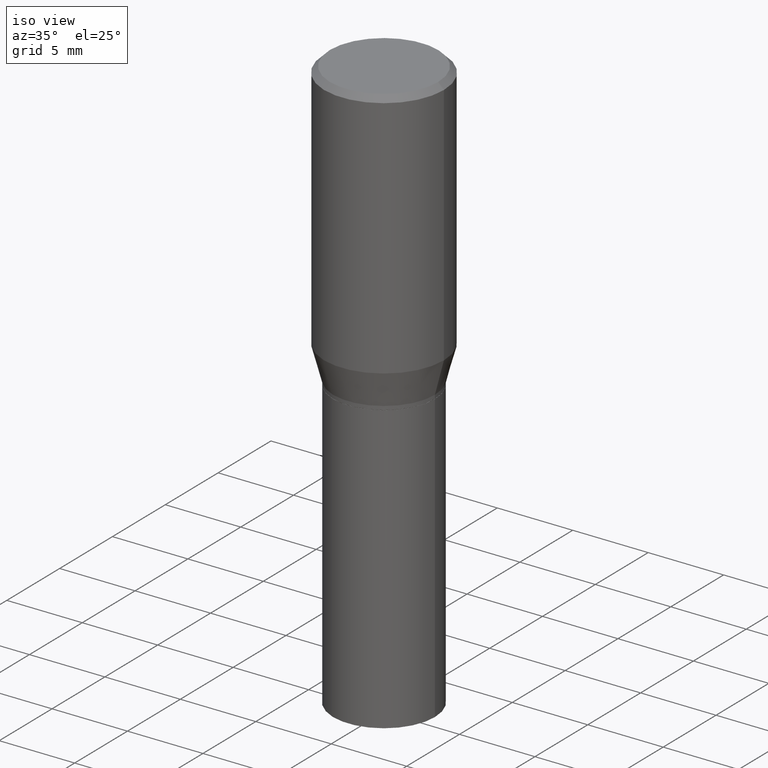
[diagram: clean part render]
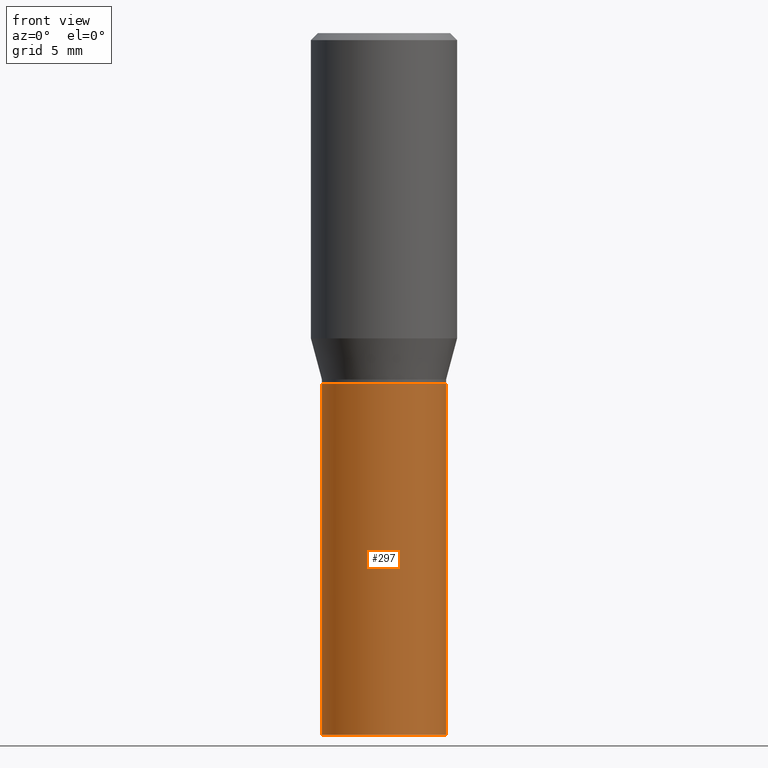
[diagram: tour spotlight — one face highlighted and labeled with its STEP entity id]
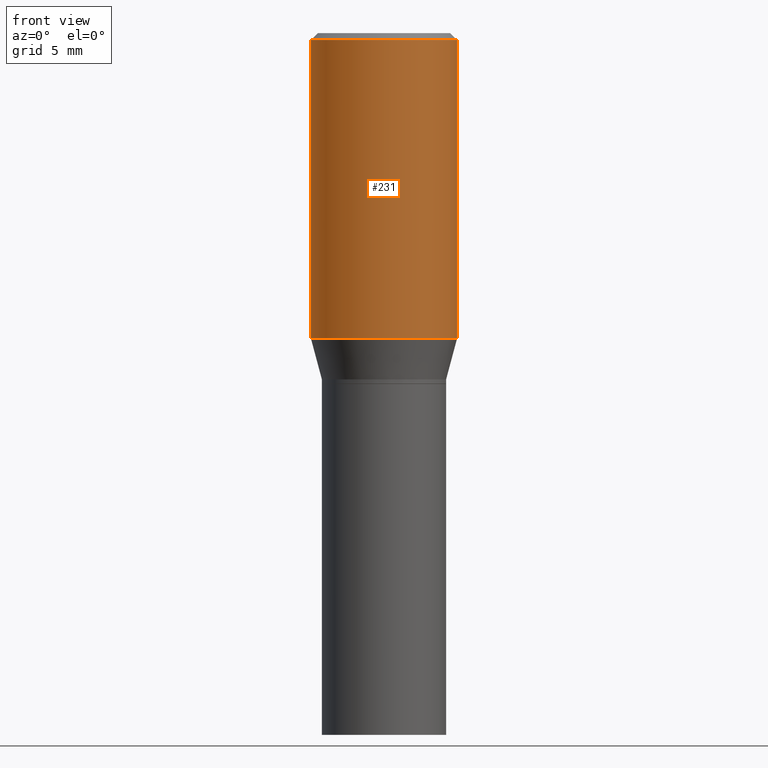
[diagram: tour spotlight — one face highlighted and labeled with its STEP entity id]
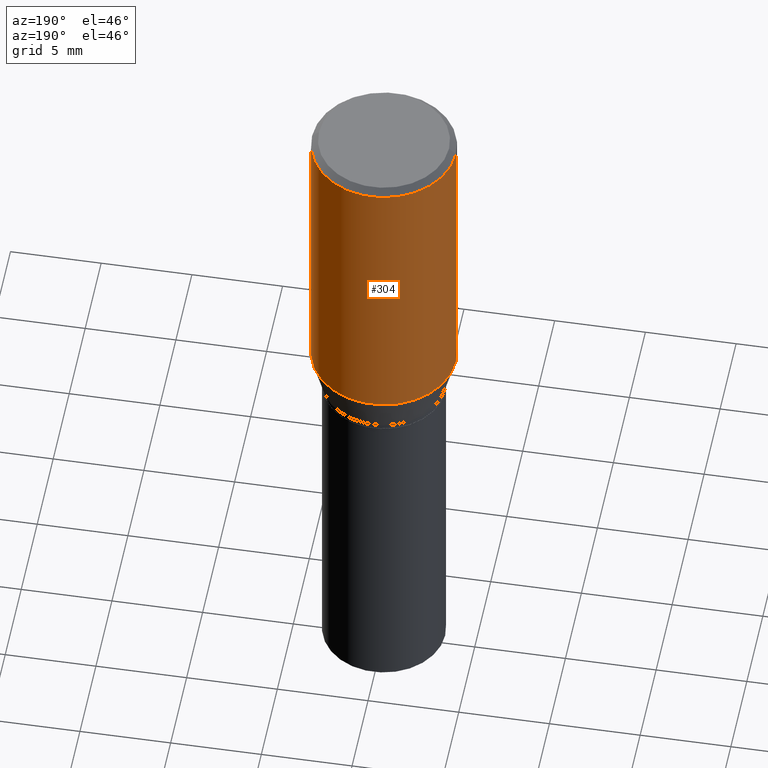
[diagram: tour spotlight — one face highlighted and labeled with its STEP entity id]
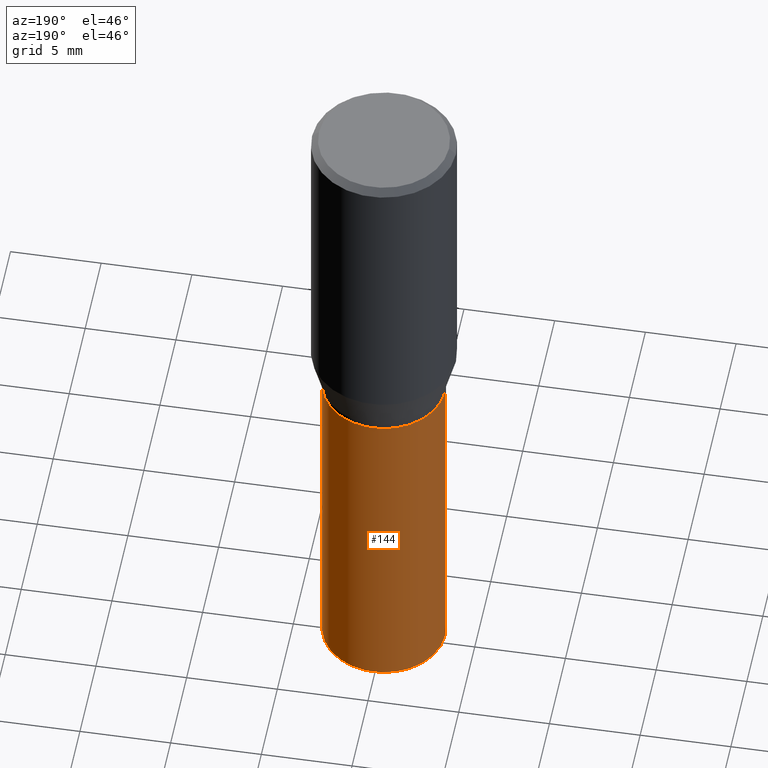
[diagram: tour spotlight — one face highlighted and labeled with its STEP entity id]
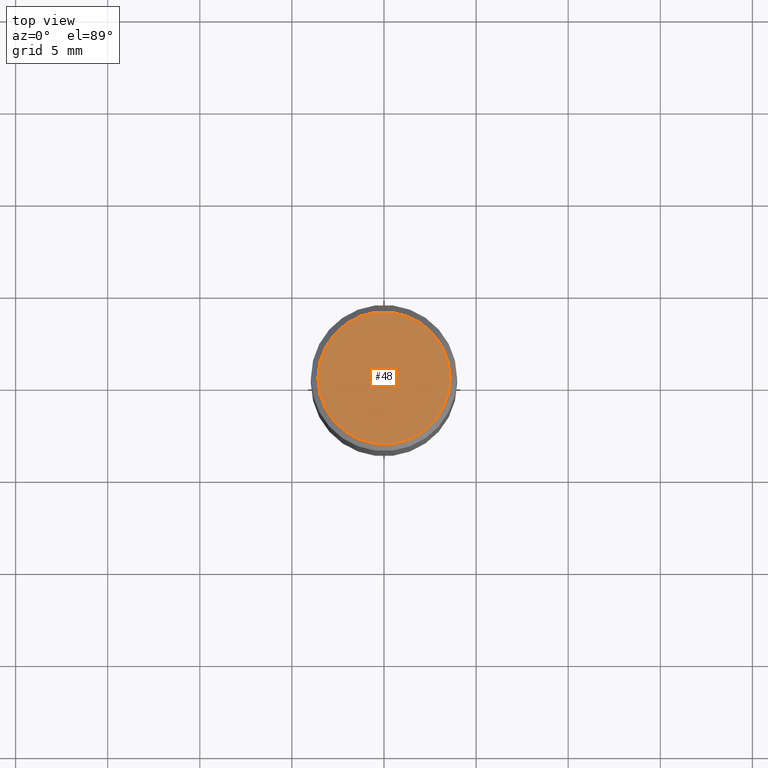
[diagram: tour spotlight — one face highlighted and labeled with its STEP entity id]
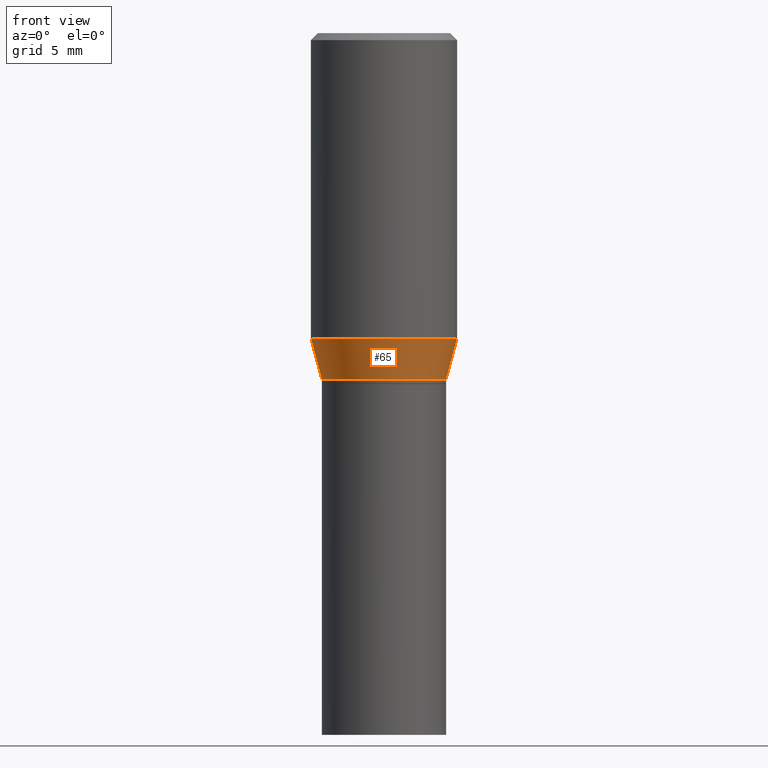
[diagram: tour spotlight — one face highlighted and labeled with its STEP entity id]
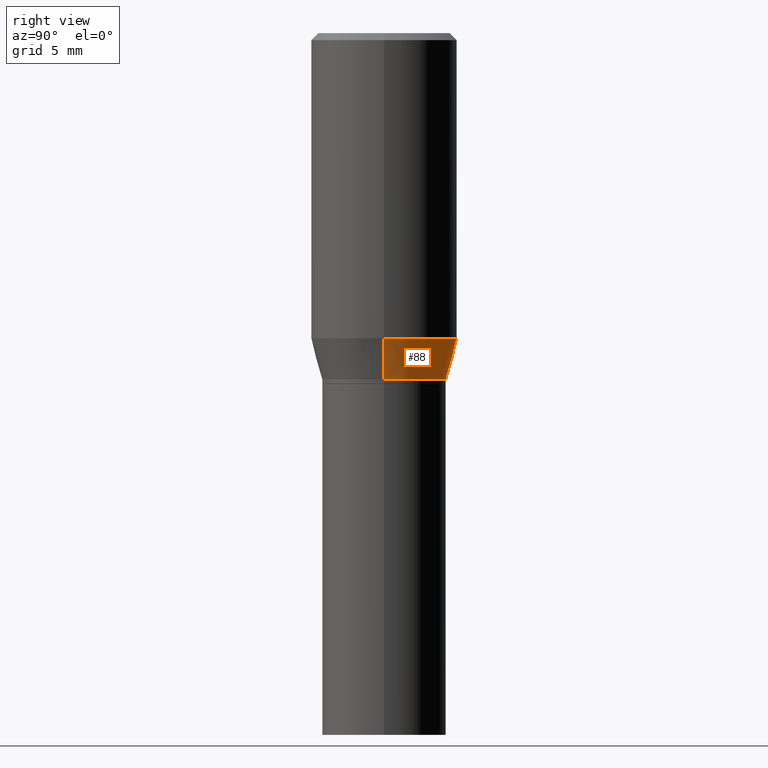
[diagram: tour spotlight — one face highlighted and labeled with its STEP entity id]
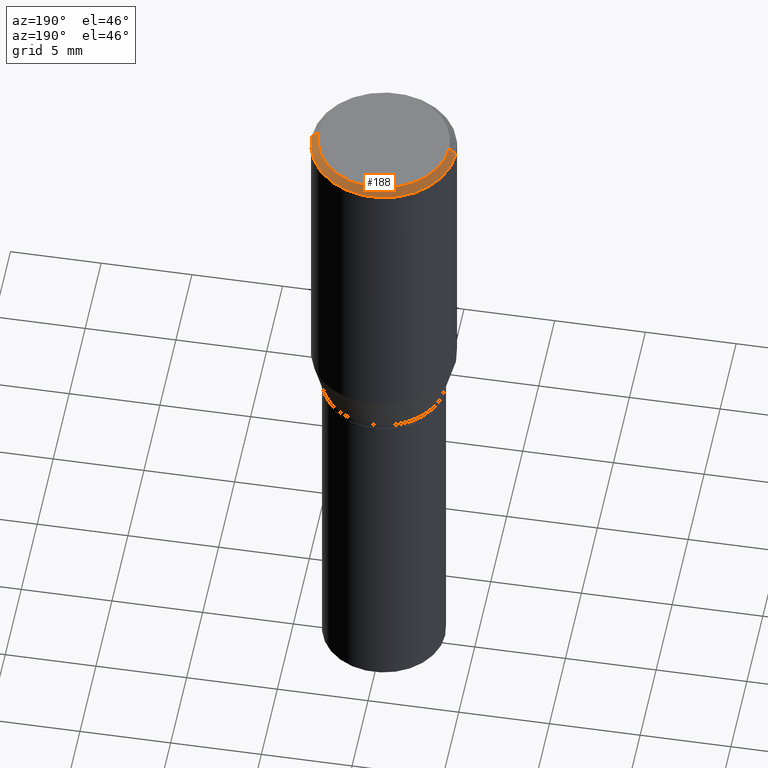
[diagram: tour spotlight — one face highlighted and labeled with its STEP entity id]
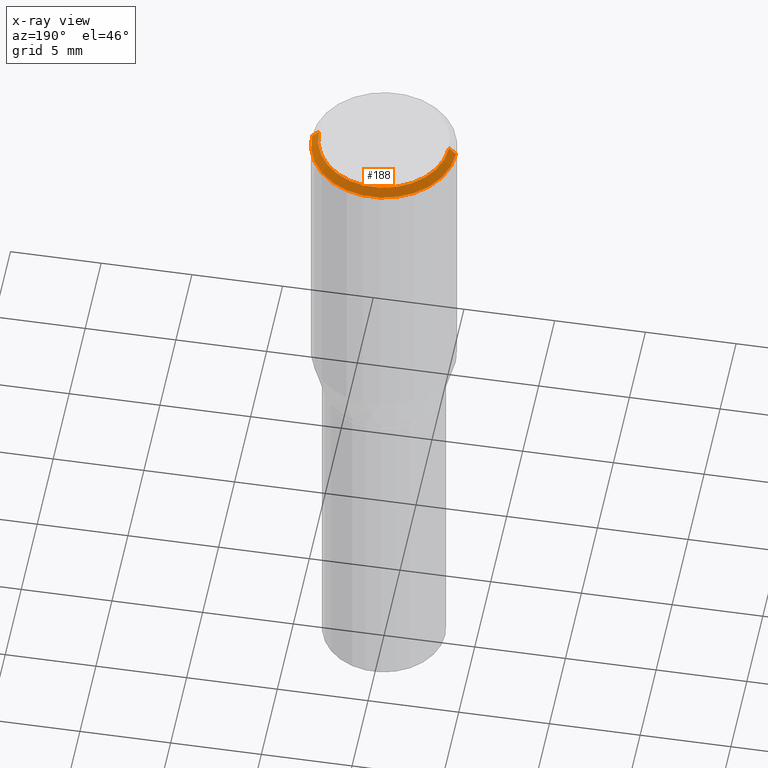
[diagram: x-ray of the same camera — body ghosted, this tour face saturated]
A machine part: a face-by-face anatomy tour. The part has 16 B-rep faces; the first image is the clean iso view, then the 8 largest visible faces are spotlighted one at a time (largest first), each with its STEP entity span.

Face 1 — front view, entity #297. In plain terms, the highlighted cylindrical surface (partial cylindrical patch) has radius 3.3731 mm, axis along (-0, 0, 1).
Definition (entity closure, byte-faithful):
#11 = DIRECTION ( 'NONE',  ( 1.000000000000000000, -6.982962677686268288E-15, 0.000000000000000000 ) ) ;
#21 = DIRECTION ( 'NONE',  ( 1.000000000000000000, -6.982962677686263555E-15, 0.000000000000000000 ) ) ;
#23 = CARTESIAN_POINT ( 'NONE',  ( 0.1328000000000000014, -3.545948447729095705E-15, -0.7500000000000001110 ) ) ;
#59 = DIRECTION ( 'NONE',  ( -2.445468806185136597E-29, 3.491481338843145583E-15, 1.000000000000000000 ) ) ;
#60 = ORIENTED_EDGE ( 'NONE', *, *, #67, .F. ) ;
#64 = LINE ( 'NONE', #433, #202 ) ;
#67 = EDGE_CURVE ( 'NONE', #178, #221, #130, .T. ) ;
#75 = CIRCLE ( 'NONE', #98, 0.1328000000000000014 ) ;
#92 = CIRCLE ( 'NONE', #455, 0.1328000000000000014 ) ;
#96 = CARTESIAN_POINT ( 'NONE',  ( 3.668203209277704895E-29, -5.237222008264718177E-15, -1.500000000000000222 ) ) ;
#98 = AXIS2_PLACEMENT_3D ( 'NONE', #180, #217, #11 ) ;
#116 = EDGE_CURVE ( 'NONE', #178, #373, #92, .T. ) ;
#121 = VERTEX_POINT ( 'NONE', #23 ) ;
#130 = LINE ( 'NONE', #452, #248 ) ;
#136 = DIRECTION ( 'NONE',  ( 1.000000000000000000, -6.982962677686266711E-15, 4.876176775795935232E-29 ) ) ;
#169 = CARTESIAN_POINT ( 'NONE',  ( -0.1328000000000000014, -2.984315753109125576E-15, -0.7500000000000001110 ) ) ;
#178 = VERTEX_POINT ( 'NONE', #197 ) ;
#180 = CARTESIAN_POINT ( 'NONE',  ( 1.834101604638852448E-29, -2.618611004132359088E-15, -0.7500000000000001110 ) ) ;
#197 = CARTESIAN_POINT ( 'NONE',  ( -0.1328000000000000014, -2.984315753109125576E-15, -1.500000000000000222 ) ) ;
#202 = VECTOR ( 'NONE', #427, 39.37007874015748143 ) ;
#217 = DIRECTION ( 'NONE',  ( -2.445468806185136597E-29, 3.491481338843145583E-15, 1.000000000000000000 ) ) ;
#221 = VERTEX_POINT ( 'NONE', #169 ) ;
#236 = CYLINDRICAL_SURFACE ( 'NONE', #343, 0.1328000000000000014 ) ;
#248 = VECTOR ( 'NONE', #421, 39.37007874015748143 ) ;
#274 = EDGE_CURVE ( 'NONE', #373, #121, #64, .T. ) ;
#291 = ORIENTED_EDGE ( 'NONE', *, *, #116, .T. ) ;
#297 = ADVANCED_FACE ( 'NONE', ( #391 ), #236, .T. ) ;
#325 = ORIENTED_EDGE ( 'NONE', *, *, #429, .F. ) ;
#343 = AXIS2_PLACEMENT_3D ( 'NONE', #350, #59, #136 ) ;
#350 = CARTESIAN_POINT ( 'NONE',  ( 0.000000000000000000, 0.000000000000000000, 0.000000000000000000 ) ) ;
#358 = ORIENTED_EDGE ( 'NONE', *, *, #274, .T. ) ;
#373 = VERTEX_POINT ( 'NONE', #435 ) ;
#391 = FACE_OUTER_BOUND ( 'NONE', #441, .T. ) ;
#421 = DIRECTION ( 'NONE',  ( -2.445468806185136877E-29, 3.491481338843145188E-15, 1.000000000000000000 ) ) ;
#427 = DIRECTION ( 'NONE',  ( -2.445468806185136877E-29, 3.491481338843145188E-15, 1.000000000000000000 ) ) ;
#429 = EDGE_CURVE ( 'NONE', #221, #121, #75, .T. ) ;
#433 = CARTESIAN_POINT ( 'NONE',  ( 0.1328000000000000014, -9.273374435967362223E-16, 6.475562758257002307E-30 ) ) ;
#435 = CARTESIAN_POINT ( 'NONE',  ( 0.1328000000000000014, -6.164559451861454793E-15, -1.500000000000000222 ) ) ;
#441 = EDGE_LOOP ( 'NONE', ( #60, #291, #358, #325 ) ) ;
#452 = CARTESIAN_POINT ( 'NONE',  ( -0.1328000000000000014, 9.436007530894130566E-16, -6.532345799858513932E-30 ) ) ;
#455 = AXIS2_PLACEMENT_3D ( 'NONE', #96, #460, #21 ) ;
#460 = DIRECTION ( 'NONE',  ( -2.445468806185136597E-29, 3.491481338843145583E-15, 1.000000000000000000 ) ) ;

Face 2 — front view, entity #231. In plain terms, the highlighted cylindrical surface (partial cylindrical patch) has radius 3.9688 mm, axis along (-0, 0, 1).
Definition (entity closure, byte-faithful):
#2 = EDGE_CURVE ( 'NONE', #108, #404, #413, .T. ) ;
#3 = CARTESIAN_POINT ( 'NONE',  ( -0.1562500000000000000, 1.110223024625156540E-15, -7.685836078523291160E-30 ) ) ;
#24 = VECTOR ( 'NONE', #281, 39.37007874015748143 ) ;
#27 = FACE_OUTER_BOUND ( 'NONE', #368, .T. ) ;
#44 = CARTESIAN_POINT ( 'NONE',  ( 1.595627822192971094E-29, -2.278133644900773069E-15, -0.6524834085625104141 ) ) ;
#72 = ORIENTED_EDGE ( 'NONE', *, *, #2, .T. ) ;
#104 = AXIS2_PLACEMENT_3D ( 'NONE', #44, #251, #369 ) ;
#105 = AXIS2_PLACEMENT_3D ( 'NONE', #106, #397, #428 ) ;
#106 = CARTESIAN_POINT ( 'NONE',  ( 0.000000000000000000, 0.000000000000000000, 0.000000000000000000 ) ) ;
#108 = VERTEX_POINT ( 'NONE', #302 ) ;
#135 = AXIS2_PLACEMENT_3D ( 'NONE', #138, #396, #243 ) ;
#138 = CARTESIAN_POINT ( 'NONE',  ( 3.668203209277705088E-31, -5.237222008264718399E-17, -0.01499999999999999944 ) ) ;
#145 = CARTESIAN_POINT ( 'NONE',  ( 0.1562500000000000000, -1.091087918388479174E-15, 7.619026212181150377E-30 ) ) ;
#179 = VERTEX_POINT ( 'NONE', #339 ) ;
#207 = VECTOR ( 'NONE', #466, 39.37007874015748143 ) ;
#213 = CIRCLE ( 'NONE', #135, 0.1562500000000000000 ) ;
#231 = ADVANCED_FACE ( 'NONE', ( #27 ), #316, .T. ) ;
#243 = DIRECTION ( 'NONE',  ( 1.000000000000000000, -6.982962677686266711E-15, 0.000000000000000000 ) ) ;
#247 = LINE ( 'NONE', #145, #24 ) ;
#251 = DIRECTION ( 'NONE',  ( -2.445468806185136597E-29, 3.491481338843145583E-15, 1.000000000000000000 ) ) ;
#255 = CARTESIAN_POINT ( 'NONE',  ( -0.1562500000000000000, -5.502990786655347834E-17, -0.01499999999999999944 ) ) ;
#260 = ORIENTED_EDGE ( 'NONE', *, *, #376, .T. ) ;
#281 = DIRECTION ( 'NONE',  ( -2.445468806185136877E-29, 3.491481338843145188E-15, 1.000000000000000000 ) ) ;
#288 = CARTESIAN_POINT ( 'NONE',  ( 0.1562500000000000000, -3.369221563289251454E-15, -0.6524834085625104141 ) ) ;
#302 = CARTESIAN_POINT ( 'NONE',  ( -0.1562500000000000000, -1.167910620275616332E-15, -0.6524834085625104141 ) ) ;
#312 = LINE ( 'NONE', #3, #207 ) ;
#316 = CYLINDRICAL_SURFACE ( 'NONE', #105, 0.1562500000000000000 ) ;
#320 = EDGE_CURVE ( 'NONE', #108, #410, #312, .T. ) ;
#327 = ORIENTED_EDGE ( 'NONE', *, *, #320, .F. ) ;
#333 = EDGE_CURVE ( 'NONE', #410, #179, #213, .T. ) ;
#337 = ORIENTED_EDGE ( 'NONE', *, *, #333, .F. ) ;
#339 = CARTESIAN_POINT ( 'NONE',  ( 0.1562500000000000000, -1.143460138471126253E-15, -0.01499999999999999944 ) ) ;
#368 = EDGE_LOOP ( 'NONE', ( #327, #72, #260, #337 ) ) ;
#369 = DIRECTION ( 'NONE',  ( 1.000000000000000000, -6.982962677686265133E-15, 0.000000000000000000 ) ) ;
#376 = EDGE_CURVE ( 'NONE', #404, #179, #247, .T. ) ;
#396 = DIRECTION ( 'NONE',  ( -2.445468806185136597E-29, 3.491481338843145583E-15, 1.000000000000000000 ) ) ;
#397 = DIRECTION ( 'NONE',  ( -2.445468806185136597E-29, 3.491481338843145583E-15, 1.000000000000000000 ) ) ;
#404 = VERTEX_POINT ( 'NONE', #288 ) ;
#410 = VERTEX_POINT ( 'NONE', #255 ) ;
#413 = CIRCLE ( 'NONE', #104, 0.1562500000000000000 ) ;
#428 = DIRECTION ( 'NONE',  ( 1.000000000000000000, -6.982962677686266711E-15, 4.876176775795936353E-29 ) ) ;
#466 = DIRECTION ( 'NONE',  ( -2.445468806185136877E-29, 3.491481338843145188E-15, 1.000000000000000000 ) ) ;

Face 3 — auxiliary view, entity #304. In plain terms, the highlighted cylindrical surface (partial cylindrical patch) has radius 3.9688 mm, axis along (-0, 0, 1).
Definition (entity closure, byte-faithful):
#3 = CARTESIAN_POINT ( 'NONE',  ( -0.1562500000000000000, 1.110223024625156540E-15, -7.685836078523291160E-30 ) ) ;
#24 = VECTOR ( 'NONE', #281, 39.37007874015748143 ) ;
#89 = EDGE_CURVE ( 'NONE', #404, #108, #175, .T. ) ;
#90 = DIRECTION ( 'NONE',  ( 1.000000000000000000, -6.982962677686265133E-15, 0.000000000000000000 ) ) ;
#108 = VERTEX_POINT ( 'NONE', #302 ) ;
#137 = CYLINDRICAL_SURFACE ( 'NONE', #349, 0.1562500000000000000 ) ;
#145 = CARTESIAN_POINT ( 'NONE',  ( 0.1562500000000000000, -1.091087918388479174E-15, 7.619026212181150377E-30 ) ) ;
#156 = AXIS2_PLACEMENT_3D ( 'NONE', #303, #338, #90 ) ;
#165 = EDGE_LOOP ( 'NONE', ( #412, #285, #364, #220 ) ) ;
#166 = EDGE_CURVE ( 'NONE', #179, #410, #189, .T. ) ;
#175 = CIRCLE ( 'NONE', #156, 0.1562500000000000000 ) ;
#179 = VERTEX_POINT ( 'NONE', #339 ) ;
#189 = CIRCLE ( 'NONE', #270, 0.1562500000000000000 ) ;
#196 = DIRECTION ( 'NONE',  ( -2.445468806185136597E-29, 3.491481338843145583E-15, 1.000000000000000000 ) ) ;
#204 = FACE_OUTER_BOUND ( 'NONE', #165, .T. ) ;
#207 = VECTOR ( 'NONE', #466, 39.37007874015748143 ) ;
#220 = ORIENTED_EDGE ( 'NONE', *, *, #376, .F. ) ;
#239 = DIRECTION ( 'NONE',  ( 1.000000000000000000, -6.982962677686266711E-15, 4.876176775795936353E-29 ) ) ;
#247 = LINE ( 'NONE', #145, #24 ) ;
#255 = CARTESIAN_POINT ( 'NONE',  ( -0.1562500000000000000, -5.502990786655347834E-17, -0.01499999999999999944 ) ) ;
#265 = DIRECTION ( 'NONE',  ( 1.000000000000000000, -6.982962677686266711E-15, 0.000000000000000000 ) ) ;
#268 = CARTESIAN_POINT ( 'NONE',  ( 3.668203209277705088E-31, -5.237222008264718399E-17, -0.01499999999999999944 ) ) ;
#270 = AXIS2_PLACEMENT_3D ( 'NONE', #268, #196, #265 ) ;
#277 = DIRECTION ( 'NONE',  ( -2.445468806185136597E-29, 3.491481338843145583E-15, 1.000000000000000000 ) ) ;
#281 = DIRECTION ( 'NONE',  ( -2.445468806185136877E-29, 3.491481338843145188E-15, 1.000000000000000000 ) ) ;
#285 = ORIENTED_EDGE ( 'NONE', *, *, #320, .T. ) ;
#288 = CARTESIAN_POINT ( 'NONE',  ( 0.1562500000000000000, -3.369221563289251454E-15, -0.6524834085625104141 ) ) ;
#302 = CARTESIAN_POINT ( 'NONE',  ( -0.1562500000000000000, -1.167910620275616332E-15, -0.6524834085625104141 ) ) ;
#303 = CARTESIAN_POINT ( 'NONE',  ( 1.595627822192971094E-29, -2.278133644900773069E-15, -0.6524834085625104141 ) ) ;
#304 = ADVANCED_FACE ( 'NONE', ( #204 ), #137, .T. ) ;
#308 = CARTESIAN_POINT ( 'NONE',  ( 0.000000000000000000, 0.000000000000000000, 0.000000000000000000 ) ) ;
#312 = LINE ( 'NONE', #3, #207 ) ;
#320 = EDGE_CURVE ( 'NONE', #108, #410, #312, .T. ) ;
#338 = DIRECTION ( 'NONE',  ( -2.445468806185136597E-29, 3.491481338843145583E-15, 1.000000000000000000 ) ) ;
#339 = CARTESIAN_POINT ( 'NONE',  ( 0.1562500000000000000, -1.143460138471126253E-15, -0.01499999999999999944 ) ) ;
#349 = AXIS2_PLACEMENT_3D ( 'NONE', #308, #277, #239 ) ;
#364 = ORIENTED_EDGE ( 'NONE', *, *, #166, .F. ) ;
#376 = EDGE_CURVE ( 'NONE', #404, #179, #247, .T. ) ;
#404 = VERTEX_POINT ( 'NONE', #288 ) ;
#410 = VERTEX_POINT ( 'NONE', #255 ) ;
#412 = ORIENTED_EDGE ( 'NONE', *, *, #89, .T. ) ;
#466 = DIRECTION ( 'NONE',  ( -2.445468806185136877E-29, 3.491481338843145188E-15, 1.000000000000000000 ) ) ;

Face 4 — auxiliary view, entity #144. In plain terms, the highlighted cylindrical surface (partial cylindrical patch) has radius 3.3731 mm, axis along (-0, 0, 1).
Definition (entity closure, byte-faithful):
#19 = AXIS2_PLACEMENT_3D ( 'NONE', #434, #430, #31 ) ;
#23 = CARTESIAN_POINT ( 'NONE',  ( 0.1328000000000000014, -3.545948447729095705E-15, -0.7500000000000001110 ) ) ;
#31 = DIRECTION ( 'NONE',  ( 1.000000000000000000, -6.982962677686263555E-15, 0.000000000000000000 ) ) ;
#46 = ORIENTED_EDGE ( 'NONE', *, *, #274, .F. ) ;
#63 = AXIS2_PLACEMENT_3D ( 'NONE', #74, #215, #437 ) ;
#64 = LINE ( 'NONE', #433, #202 ) ;
#67 = EDGE_CURVE ( 'NONE', #178, #221, #130, .T. ) ;
#71 = AXIS2_PLACEMENT_3D ( 'NONE', #160, #417, #162 ) ;
#74 = CARTESIAN_POINT ( 'NONE',  ( 1.834101604638852448E-29, -2.618611004132359088E-15, -0.7500000000000001110 ) ) ;
#85 = EDGE_LOOP ( 'NONE', ( #407, #323, #342, #46 ) ) ;
#121 = VERTEX_POINT ( 'NONE', #23 ) ;
#122 = CIRCLE ( 'NONE', #19, 0.1328000000000000014 ) ;
#130 = LINE ( 'NONE', #452, #248 ) ;
#144 = ADVANCED_FACE ( 'NONE', ( #266 ), #344, .T. ) ;
#160 = CARTESIAN_POINT ( 'NONE',  ( 0.000000000000000000, 0.000000000000000000, 0.000000000000000000 ) ) ;
#162 = DIRECTION ( 'NONE',  ( 1.000000000000000000, -6.982962677686266711E-15, 4.876176775795935232E-29 ) ) ;
#169 = CARTESIAN_POINT ( 'NONE',  ( -0.1328000000000000014, -2.984315753109125576E-15, -0.7500000000000001110 ) ) ;
#178 = VERTEX_POINT ( 'NONE', #197 ) ;
#197 = CARTESIAN_POINT ( 'NONE',  ( -0.1328000000000000014, -2.984315753109125576E-15, -1.500000000000000222 ) ) ;
#202 = VECTOR ( 'NONE', #427, 39.37007874015748143 ) ;
#215 = DIRECTION ( 'NONE',  ( -2.445468806185136597E-29, 3.491481338843145583E-15, 1.000000000000000000 ) ) ;
#221 = VERTEX_POINT ( 'NONE', #169 ) ;
#228 = CIRCLE ( 'NONE', #63, 0.1328000000000000014 ) ;
#248 = VECTOR ( 'NONE', #421, 39.37007874015748143 ) ;
#266 = FACE_OUTER_BOUND ( 'NONE', #85, .T. ) ;
#274 = EDGE_CURVE ( 'NONE', #373, #121, #64, .T. ) ;
#313 = EDGE_CURVE ( 'NONE', #373, #178, #122, .T. ) ;
#323 = ORIENTED_EDGE ( 'NONE', *, *, #67, .T. ) ;
#342 = ORIENTED_EDGE ( 'NONE', *, *, #422, .F. ) ;
#344 = CYLINDRICAL_SURFACE ( 'NONE', #71, 0.1328000000000000014 ) ;
#373 = VERTEX_POINT ( 'NONE', #435 ) ;
#407 = ORIENTED_EDGE ( 'NONE', *, *, #313, .T. ) ;
#417 = DIRECTION ( 'NONE',  ( -2.445468806185136597E-29, 3.491481338843145583E-15, 1.000000000000000000 ) ) ;
#421 = DIRECTION ( 'NONE',  ( -2.445468806185136877E-29, 3.491481338843145188E-15, 1.000000000000000000 ) ) ;
#422 = EDGE_CURVE ( 'NONE', #121, #221, #228, .T. ) ;
#427 = DIRECTION ( 'NONE',  ( -2.445468806185136877E-29, 3.491481338843145188E-15, 1.000000000000000000 ) ) ;
#430 = DIRECTION ( 'NONE',  ( -2.445468806185136597E-29, 3.491481338843145583E-15, 1.000000000000000000 ) ) ;
#433 = CARTESIAN_POINT ( 'NONE',  ( 0.1328000000000000014, -9.273374435967362223E-16, 6.475562758257002307E-30 ) ) ;
#434 = CARTESIAN_POINT ( 'NONE',  ( 3.668203209277704895E-29, -5.237222008264718177E-15, -1.500000000000000222 ) ) ;
#435 = CARTESIAN_POINT ( 'NONE',  ( 0.1328000000000000014, -6.164559451861454793E-15, -1.500000000000000222 ) ) ;
#437 = DIRECTION ( 'NONE',  ( 1.000000000000000000, -6.982962677686268288E-15, 0.000000000000000000 ) ) ;
#452 = CARTESIAN_POINT ( 'NONE',  ( -0.1328000000000000014, 9.436007530894130566E-16, -6.532345799858513932E-30 ) ) ;

Face 5 — top view, entity #48. In plain terms, the highlighted planar face has unit normal (0, -0, -1).
Definition (entity closure, byte-faithful):
#6 = CARTESIAN_POINT ( 'NONE',  ( -0.1412500000000000144, 1.012529588264508555E-15, -4.362760153143304915E-17 ) ) ;
#30 = EDGE_CURVE ( 'NONE', #43, #258, #201, .T. ) ;
#43 = VERTEX_POINT ( 'NONE', #6 ) ;
#48 = ADVANCED_FACE ( 'NONE', ( #282 ), #442, .F. ) ;
#52 = DIRECTION ( 'NONE',  ( 2.438088387897960049E-29, -3.491481338843145188E-15, -1.000000000000000000 ) ) ;
#83 = DIRECTION ( 'NONE',  ( 1.000000000000000000, -6.982962677686265922E-15, 4.874209154772796007E-29 ) ) ;
#127 = AXIS2_PLACEMENT_3D ( 'NONE', #328, #244, #356 ) ;
#148 = CARTESIAN_POINT ( 'NONE',  ( 1.066899386337773103E-45, -1.523249566054587316E-31, -4.362760153142606033E-17 ) ) ;
#163 = CARTESIAN_POINT ( 'NONE',  ( 9.863434782231852123E-16, 0.1412500000000000144, -5.149855398773074051E-16 ) ) ;
#177 = CARTESIAN_POINT ( 'NONE',  ( 0.1412500000000000144, -1.046685187209839144E-15, -4.362760153141894826E-17 ) ) ;
#194 = ORIENTED_EDGE ( 'NONE', *, *, #30, .T. ) ;
#201 = CIRCLE ( 'NONE', #127, 0.1412500000000000144 ) ;
#206 = AXIS2_PLACEMENT_3D ( 'NONE', #163, #52, #457 ) ;
#244 = DIRECTION ( 'NONE',  ( -2.445468806185136597E-29, 3.491481338843145583E-15, 1.000000000000000000 ) ) ;
#258 = VERTEX_POINT ( 'NONE', #177 ) ;
#282 = FACE_OUTER_BOUND ( 'NONE', #294, .T. ) ;
#294 = EDGE_LOOP ( 'NONE', ( #194, #332 ) ) ;
#328 = CARTESIAN_POINT ( 'NONE',  ( 1.066899386337773103E-45, -1.523249566054587316E-31, -4.362760153142606033E-17 ) ) ;
#332 = ORIENTED_EDGE ( 'NONE', *, *, #453, .T. ) ;
#336 = CIRCLE ( 'NONE', #456, 0.1412500000000000144 ) ;
#356 = DIRECTION ( 'NONE',  ( 1.000000000000000000, -6.982962677686265922E-15, 4.874209154772796007E-29 ) ) ;
#406 = DIRECTION ( 'NONE',  ( -2.445468806185136597E-29, 3.491481338843145583E-15, 1.000000000000000000 ) ) ;
#442 = PLANE ( 'NONE',  #206 ) ;
#453 = EDGE_CURVE ( 'NONE', #258, #43, #336, .T. ) ;
#456 = AXIS2_PLACEMENT_3D ( 'NONE', #148, #406, #83 ) ;
#457 = DIRECTION ( 'NONE',  ( -1.000000000000000000, 6.982962677686265922E-15, -4.876176775795935793E-29 ) ) ;

Face 6 — front view, entity #65. In plain terms, the highlighted conical surface has half-angle 15 deg.
Definition (entity closure, byte-faithful):
#2 = EDGE_CURVE ( 'NONE', #108, #404, #413, .T. ) ;
#8 = DIRECTION ( 'NONE',  ( 0.2588190451025214611, 1.565188264969620982E-15, 0.9659258262890679791 ) ) ;
#44 = CARTESIAN_POINT ( 'NONE',  ( 1.595627822192971094E-29, -2.278133644900773069E-15, -0.6524834085625104141 ) ) ;
#51 = DIRECTION ( 'NONE',  ( 1.000000000000000000, -6.982962677686265133E-15, 0.000000000000000000 ) ) ;
#62 = CARTESIAN_POINT ( 'NONE',  ( -0.1328000000000000569, -1.640095437654514777E-15, -0.7400000000000002132 ) ) ;
#65 = ADVANCED_FACE ( 'NONE', ( #345 ), #335, .T. ) ;
#81 = VERTEX_POINT ( 'NONE', #383 ) ;
#103 = CARTESIAN_POINT ( 'NONE',  ( 0.1328000000000000569, -3.511033634340664450E-15, -0.7400000000000002132 ) ) ;
#104 = AXIS2_PLACEMENT_3D ( 'NONE', #44, #251, #369 ) ;
#108 = VERTEX_POINT ( 'NONE', #302 ) ;
#110 = EDGE_LOOP ( 'NONE', ( #401, #237, #306, #115 ) ) ;
#115 = ORIENTED_EDGE ( 'NONE', *, *, #2, .F. ) ;
#117 = CARTESIAN_POINT ( 'NONE',  ( 0.1328000000000000569, -3.511033634340664450E-15, -0.7400000000000002132 ) ) ;
#134 = VECTOR ( 'NONE', #8, 39.37007874015748143 ) ;
#142 = LINE ( 'NONE', #117, #134 ) ;
#147 = AXIS2_PLACEMENT_3D ( 'NONE', #381, #167, #51 ) ;
#157 = AXIS2_PLACEMENT_3D ( 'NONE', #311, #271, #465 ) ;
#167 = DIRECTION ( 'NONE',  ( -2.445468806185136597E-29, 3.491481338843145583E-15, 1.000000000000000000 ) ) ;
#192 = VERTEX_POINT ( 'NONE', #103 ) ;
#237 = ORIENTED_EDGE ( 'NONE', *, *, #280, .T. ) ;
#251 = DIRECTION ( 'NONE',  ( -2.445468806185136597E-29, 3.491481338843145583E-15, 1.000000000000000000 ) ) ;
#271 = DIRECTION ( 'NONE',  ( -2.445468806185136597E-29, 3.491481338843145583E-15, 1.000000000000000000 ) ) ;
#275 = LINE ( 'NONE', #62, #326 ) ;
#280 = EDGE_CURVE ( 'NONE', #81, #192, #439, .T. ) ;
#288 = CARTESIAN_POINT ( 'NONE',  ( 0.1562500000000000000, -3.369221563289251454E-15, -0.6524834085625104141 ) ) ;
#302 = CARTESIAN_POINT ( 'NONE',  ( -0.1562500000000000000, -1.167910620275616332E-15, -0.6524834085625104141 ) ) ;
#305 = EDGE_CURVE ( 'NONE', #81, #108, #275, .T. ) ;
#306 = ORIENTED_EDGE ( 'NONE', *, *, #367, .T. ) ;
#311 = CARTESIAN_POINT ( 'NONE',  ( 1.809646916577001463E-29, -2.583696190743928228E-15, -0.7400000000000002132 ) ) ;
#326 = VECTOR ( 'NONE', #348, 39.37007874015748143 ) ;
#335 = CONICAL_SURFACE ( 'NONE', #147, 0.1328000000000000569, 0.2617993877991501850 ) ;
#345 = FACE_OUTER_BOUND ( 'NONE', #110, .T. ) ;
#348 = DIRECTION ( 'NONE',  ( -0.2588190451025214611, 5.211531920934550253E-15, 0.9659258262890679791 ) ) ;
#367 = EDGE_CURVE ( 'NONE', #192, #404, #142, .T. ) ;
#369 = DIRECTION ( 'NONE',  ( 1.000000000000000000, -6.982962677686265133E-15, 0.000000000000000000 ) ) ;
#381 = CARTESIAN_POINT ( 'NONE',  ( 1.809646916577001463E-29, -2.583696190743928228E-15, -0.7400000000000002132 ) ) ;
#383 = CARTESIAN_POINT ( 'NONE',  ( -0.1328000000000000569, -1.404003028965065357E-15, -0.7400000000000002132 ) ) ;
#401 = ORIENTED_EDGE ( 'NONE', *, *, #305, .F. ) ;
#404 = VERTEX_POINT ( 'NONE', #288 ) ;
#413 = CIRCLE ( 'NONE', #104, 0.1562500000000000000 ) ;
#439 = CIRCLE ( 'NONE', #157, 0.1328000000000000569 ) ;
#465 = DIRECTION ( 'NONE',  ( 1.000000000000000000, -6.982962677686265133E-15, 0.000000000000000000 ) ) ;

Face 7 — right view, entity #88. In plain terms, the highlighted conical surface has half-angle 15 deg.
Definition (entity closure, byte-faithful):
#5 = ORIENTED_EDGE ( 'NONE', *, *, #305, .T. ) ;
#8 = DIRECTION ( 'NONE',  ( 0.2588190451025214611, 1.565188264969620982E-15, 0.9659258262890679791 ) ) ;
#26 = DIRECTION ( 'NONE',  ( 1.000000000000000000, -6.982962677686265133E-15, 0.000000000000000000 ) ) ;
#62 = CARTESIAN_POINT ( 'NONE',  ( -0.1328000000000000569, -1.640095437654514777E-15, -0.7400000000000002132 ) ) ;
#66 = DIRECTION ( 'NONE',  ( 1.000000000000000000, -6.982962677686265133E-15, 0.000000000000000000 ) ) ;
#81 = VERTEX_POINT ( 'NONE', #383 ) ;
#88 = ADVANCED_FACE ( 'NONE', ( #232 ), #385, .T. ) ;
#89 = EDGE_CURVE ( 'NONE', #404, #108, #175, .T. ) ;
#90 = DIRECTION ( 'NONE',  ( 1.000000000000000000, -6.982962677686265133E-15, 0.000000000000000000 ) ) ;
#97 = CIRCLE ( 'NONE', #438, 0.1328000000000000569 ) ;
#103 = CARTESIAN_POINT ( 'NONE',  ( 0.1328000000000000569, -3.511033634340664450E-15, -0.7400000000000002132 ) ) ;
#108 = VERTEX_POINT ( 'NONE', #302 ) ;
#117 = CARTESIAN_POINT ( 'NONE',  ( 0.1328000000000000569, -3.511033634340664450E-15, -0.7400000000000002132 ) ) ;
#124 = CARTESIAN_POINT ( 'NONE',  ( 1.809646916577001463E-29, -2.583696190743928228E-15, -0.7400000000000002132 ) ) ;
#129 = DIRECTION ( 'NONE',  ( -2.445468806185136597E-29, 3.491481338843145583E-15, 1.000000000000000000 ) ) ;
#133 = ORIENTED_EDGE ( 'NONE', *, *, #198, .T. ) ;
#134 = VECTOR ( 'NONE', #8, 39.37007874015748143 ) ;
#142 = LINE ( 'NONE', #117, #134 ) ;
#156 = AXIS2_PLACEMENT_3D ( 'NONE', #303, #338, #90 ) ;
#175 = CIRCLE ( 'NONE', #156, 0.1562500000000000000 ) ;
#192 = VERTEX_POINT ( 'NONE', #103 ) ;
#198 = EDGE_CURVE ( 'NONE', #192, #81, #97, .T. ) ;
#212 = DIRECTION ( 'NONE',  ( -2.445468806185136597E-29, 3.491481338843145583E-15, 1.000000000000000000 ) ) ;
#232 = FACE_OUTER_BOUND ( 'NONE', #321, .T. ) ;
#275 = LINE ( 'NONE', #62, #326 ) ;
#288 = CARTESIAN_POINT ( 'NONE',  ( 0.1562500000000000000, -3.369221563289251454E-15, -0.6524834085625104141 ) ) ;
#302 = CARTESIAN_POINT ( 'NONE',  ( -0.1562500000000000000, -1.167910620275616332E-15, -0.6524834085625104141 ) ) ;
#303 = CARTESIAN_POINT ( 'NONE',  ( 1.595627822192971094E-29, -2.278133644900773069E-15, -0.6524834085625104141 ) ) ;
#305 = EDGE_CURVE ( 'NONE', #81, #108, #275, .T. ) ;
#317 = ORIENTED_EDGE ( 'NONE', *, *, #89, .F. ) ;
#321 = EDGE_LOOP ( 'NONE', ( #133, #5, #317, #352 ) ) ;
#326 = VECTOR ( 'NONE', #348, 39.37007874015748143 ) ;
#338 = DIRECTION ( 'NONE',  ( -2.445468806185136597E-29, 3.491481338843145583E-15, 1.000000000000000000 ) ) ;
#346 = CARTESIAN_POINT ( 'NONE',  ( 1.809646916577001463E-29, -2.583696190743928228E-15, -0.7400000000000002132 ) ) ;
#348 = DIRECTION ( 'NONE',  ( -0.2588190451025214611, 5.211531920934550253E-15, 0.9659258262890679791 ) ) ;
#352 = ORIENTED_EDGE ( 'NONE', *, *, #367, .F. ) ;
#367 = EDGE_CURVE ( 'NONE', #192, #404, #142, .T. ) ;
#383 = CARTESIAN_POINT ( 'NONE',  ( -0.1328000000000000569, -1.404003028965065357E-15, -0.7400000000000002132 ) ) ;
#385 = CONICAL_SURFACE ( 'NONE', #450, 0.1328000000000000569, 0.2617993877991501850 ) ;
#404 = VERTEX_POINT ( 'NONE', #288 ) ;
#438 = AXIS2_PLACEMENT_3D ( 'NONE', #346, #212, #66 ) ;
#450 = AXIS2_PLACEMENT_3D ( 'NONE', #124, #129, #26 ) ;

Face 8 — auxiliary view, entity #188. An x-ray twin of the same camera follows (body ghosted, this face saturated) — the face is partly hidden behind the body. In plain terms, the highlighted conical surface has half-angle 45 deg.
Definition (entity closure, byte-faithful):
#6 = CARTESIAN_POINT ( 'NONE',  ( -0.1412500000000000144, 1.012529588264508555E-15, -4.362760153143304915E-17 ) ) ;
#22 = FACE_OUTER_BOUND ( 'NONE', #445, .T. ) ;
#41 = AXIS2_PLACEMENT_3D ( 'NONE', #126, #393, #173 ) ;
#43 = VERTEX_POINT ( 'NONE', #6 ) ;
#50 = CONICAL_SURFACE ( 'NONE', #41, 0.1562500000000000000, 0.7853981633974495002 ) ;
#57 = EDGE_CURVE ( 'NONE', #258, #179, #91, .T. ) ;
#83 = DIRECTION ( 'NONE',  ( 1.000000000000000000, -6.982962677686265922E-15, 4.874209154772796007E-29 ) ) ;
#91 = LINE ( 'NONE', #95, #132 ) ;
#95 = CARTESIAN_POINT ( 'NONE',  ( 0.1562500000000000000, -1.124325032234449083E-15, -0.01499999999999999944 ) ) ;
#99 = CARTESIAN_POINT ( 'NONE',  ( -0.1562500000000000000, 1.038715698305832094E-15, -0.01499999999999999944 ) ) ;
#126 = CARTESIAN_POINT ( 'NONE',  ( 3.668203209277705088E-31, -5.237222008264718399E-17, -0.01499999999999999944 ) ) ;
#132 = VECTOR ( 'NONE', #230, 39.37007874015748143 ) ;
#148 = CARTESIAN_POINT ( 'NONE',  ( 1.066899386337773103E-45, -1.523249566054587316E-31, -4.362760153142606033E-17 ) ) ;
#150 = ORIENTED_EDGE ( 'NONE', *, *, #453, .F. ) ;
#166 = EDGE_CURVE ( 'NONE', #179, #410, #189, .T. ) ;
#173 = DIRECTION ( 'NONE',  ( -1.000000000000000000, 6.982962677686266711E-15, 0.000000000000000000 ) ) ;
#177 = CARTESIAN_POINT ( 'NONE',  ( 0.1412500000000000144, -1.046685187209839144E-15, -4.362760153141894826E-17 ) ) ;
#179 = VERTEX_POINT ( 'NONE', #339 ) ;
#188 = ADVANCED_FACE ( 'NONE', ( #22 ), #50, .T. ) ;
#189 = CIRCLE ( 'NONE', #270, 0.1562500000000000000 ) ;
#195 = VECTOR ( 'NONE', #240, 39.37007874015748143 ) ;
#196 = DIRECTION ( 'NONE',  ( -2.445468806185136597E-29, 3.491481338843145583E-15, 1.000000000000000000 ) ) ;
#230 = DIRECTION ( 'NONE',  ( 0.7071067811865483499, -7.319954787623257623E-15, -0.7071067811865466846 ) ) ;
#233 = EDGE_CURVE ( 'NONE', #43, #410, #388, .T. ) ;
#240 = DIRECTION ( 'NONE',  ( -0.7071067811865483499, 2.468850131082265738E-15, -0.7071067811865466846 ) ) ;
#255 = CARTESIAN_POINT ( 'NONE',  ( -0.1562500000000000000, -5.502990786655347834E-17, -0.01499999999999999944 ) ) ;
#256 = ORIENTED_EDGE ( 'NONE', *, *, #166, .T. ) ;
#257 = ORIENTED_EDGE ( 'NONE', *, *, #233, .F. ) ;
#258 = VERTEX_POINT ( 'NONE', #177 ) ;
#265 = DIRECTION ( 'NONE',  ( 1.000000000000000000, -6.982962677686266711E-15, 0.000000000000000000 ) ) ;
#268 = CARTESIAN_POINT ( 'NONE',  ( 3.668203209277705088E-31, -5.237222008264718399E-17, -0.01499999999999999944 ) ) ;
#270 = AXIS2_PLACEMENT_3D ( 'NONE', #268, #196, #265 ) ;
#336 = CIRCLE ( 'NONE', #456, 0.1412500000000000144 ) ;
#339 = CARTESIAN_POINT ( 'NONE',  ( 0.1562500000000000000, -1.143460138471126253E-15, -0.01499999999999999944 ) ) ;
#372 = ORIENTED_EDGE ( 'NONE', *, *, #57, .T. ) ;
#388 = LINE ( 'NONE', #99, #195 ) ;
#393 = DIRECTION ( 'NONE',  ( 2.445468806185136597E-29, -3.491481338843145583E-15, -1.000000000000000000 ) ) ;
#406 = DIRECTION ( 'NONE',  ( -2.445468806185136597E-29, 3.491481338843145583E-15, 1.000000000000000000 ) ) ;
#410 = VERTEX_POINT ( 'NONE', #255 ) ;
#445 = EDGE_LOOP ( 'NONE', ( #150, #372, #256, #257 ) ) ;
#453 = EDGE_CURVE ( 'NONE', #258, #43, #336, .T. ) ;
#456 = AXIS2_PLACEMENT_3D ( 'NONE', #148, #406, #83 ) ;